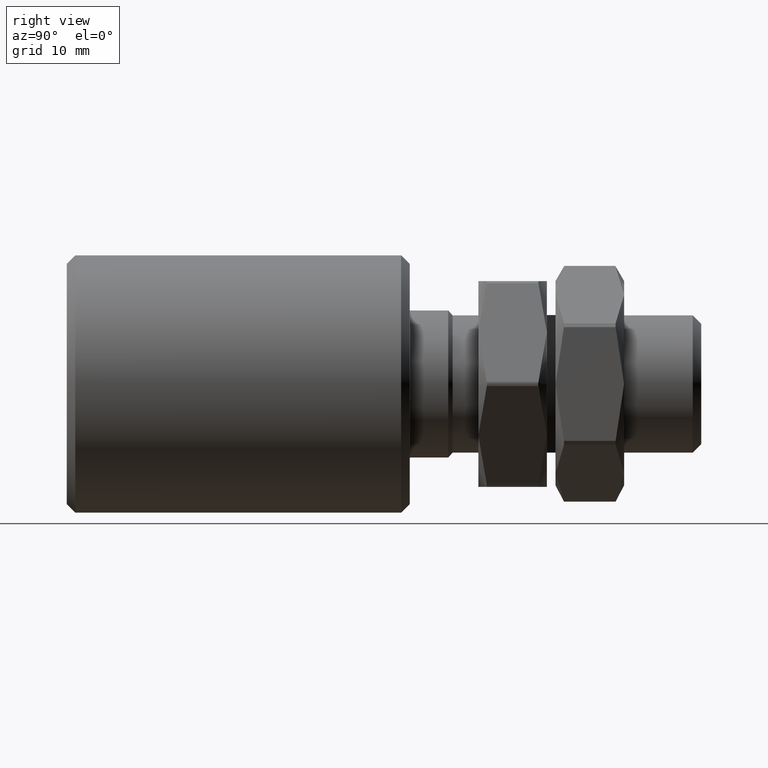
[diagram: clean part render]
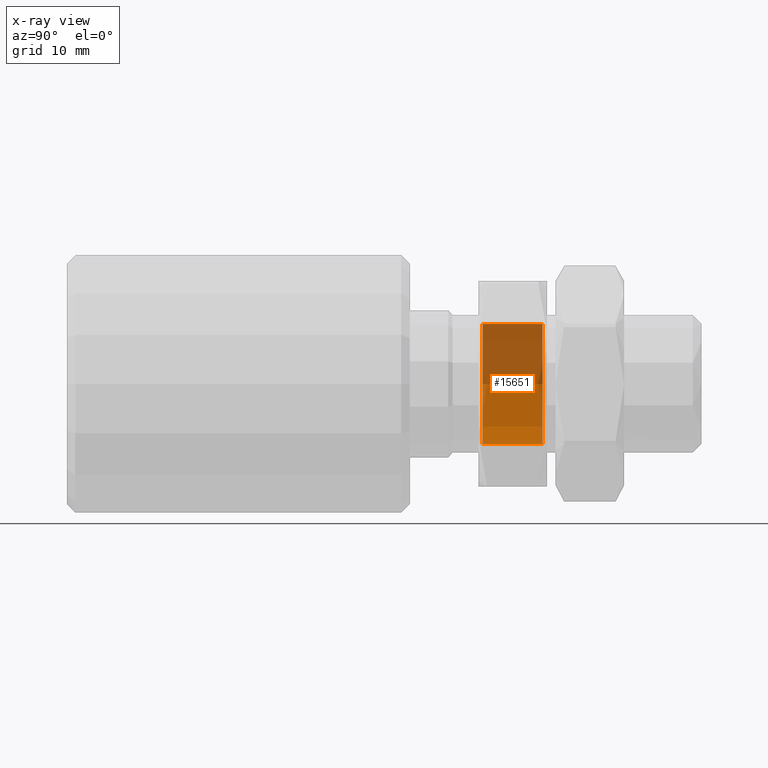
[diagram: x-ray — body ghosted, one internal face saturated and labeled with its STEP entity id]
A machine part, right view, then the same camera in x-ray: the body is ghosted and one INTERNAL B-rep face — a face not visible from any outside direction — is saturated and labeled: STEP entity #15651.
In plain terms, the highlighted cylindrical surface (partial cylindrical patch) has radius 7 mm, axis along (0, 1, 0).
Its self-contained STEP definition (entity closure, byte-faithful):
#90 = DIRECTION ( 'NONE',  ( -0.000000000000000000, 1.000000000000000000, -0.000000000000000000 ) ) ;
#444 = CARTESIAN_POINT ( 'NONE',  ( 8.572527594031473190E-16, -3.499999999999993783, -7.000000000000000000 ) ) ;
#448 = EDGE_CURVE ( 'NONE', #12755, #15610, #14723, .T. ) ;
#863 = VERTEX_POINT ( 'NONE', #444 ) ;
#975 = EDGE_CURVE ( 'NONE', #863, #4374, #6486, .T. ) ;
#1817 = CARTESIAN_POINT ( 'NONE',  ( 8.572527594031473190E-16, 4.000000000000000000, -7.000000000000000000 ) ) ;
#2203 = CARTESIAN_POINT ( 'NONE',  ( 0.000000000000000000, 4.000000000000000000, 0.000000000000000000 ) ) ;
#2587 = DIRECTION ( 'NONE',  ( 0.000000000000000000, 0.000000000000000000, 1.000000000000000000 ) ) ;
#2987 = EDGE_LOOP ( 'NONE', ( #5133, #10405, #4086, #6718 ) ) ;
#3733 = AXIS2_PLACEMENT_3D ( 'NONE', #15028, #11393, #2587 ) ;
#4086 = ORIENTED_EDGE ( 'NONE', *, *, #11968, .T. ) ;
#4374 = VERTEX_POINT ( 'NONE', #6079 ) ;
#4544 = AXIS2_PLACEMENT_3D ( 'NONE', #2203, #9617, #14837 ) ;
#4677 = CIRCLE ( 'NONE', #3733, 7.000000000000000000 ) ;
#5133 = ORIENTED_EDGE ( 'NONE', *, *, #5197, .T. ) ;
#5197 = EDGE_CURVE ( 'NONE', #12755, #863, #4677, .T. ) ;
#5281 = VECTOR ( 'NONE', #90, 1000.000000000000000 ) ;
#6079 = CARTESIAN_POINT ( 'NONE',  ( 8.572527594031473190E-16, 3.500000000000000444, -7.000000000000000000 ) ) ;
#6486 = LINE ( 'NONE', #1817, #7298 ) ;
#6718 = ORIENTED_EDGE ( 'NONE', *, *, #448, .F. ) ;
#7298 = VECTOR ( 'NONE', #10557, 1000.000000000000000 ) ;
#8621 = AXIS2_PLACEMENT_3D ( 'NONE', #16129, #9811, #9918 ) ;
#9617 = DIRECTION ( 'NONE',  ( -0.000000000000000000, 1.000000000000000000, -0.000000000000000000 ) ) ;
#9811 = DIRECTION ( 'NONE',  ( 0.000000000000000000, 1.000000000000000000, 0.000000000000000000 ) ) ;
#9918 = DIRECTION ( 'NONE',  ( 0.000000000000000000, 0.000000000000000000, 1.000000000000000000 ) ) ;
#10405 = ORIENTED_EDGE ( 'NONE', *, *, #975, .T. ) ;
#10557 = DIRECTION ( 'NONE',  ( -0.000000000000000000, 1.000000000000000000, -0.000000000000000000 ) ) ;
#10614 = CARTESIAN_POINT ( 'NONE',  ( 0.000000000000000000, 3.500000000000000444, 7.000000000000000000 ) ) ;
#10995 = CARTESIAN_POINT ( 'NONE',  ( 0.000000000000000000, -3.499999999999993783, 7.000000000000000000 ) ) ;
#11393 = DIRECTION ( 'NONE',  ( -0.000000000000000000, -1.000000000000000000, -0.000000000000000000 ) ) ;
#11813 = CIRCLE ( 'NONE', #8621, 7.000000000000000000 ) ;
#11968 = EDGE_CURVE ( 'NONE', #4374, #15610, #11813, .T. ) ;
#12755 = VERTEX_POINT ( 'NONE', #10995 ) ;
#13459 = CYLINDRICAL_SURFACE ( 'NONE', #4544, 7.000000000000000000 ) ;
#13866 = CARTESIAN_POINT ( 'NONE',  ( 0.000000000000000000, 4.000000000000000000, 7.000000000000000000 ) ) ;
#14723 = LINE ( 'NONE', #13866, #5281 ) ;
#14837 = DIRECTION ( 'NONE',  ( 0.000000000000000000, 0.000000000000000000, 1.000000000000000000 ) ) ;
#15028 = CARTESIAN_POINT ( 'NONE',  ( 0.000000000000000000, -3.499999999999993783, 0.000000000000000000 ) ) ;
#15610 = VERTEX_POINT ( 'NONE', #10614 ) ;
#15651 = ADVANCED_FACE ( 'NONE', ( #16195 ), #13459, .F. ) ;
#16129 = CARTESIAN_POINT ( 'NONE',  ( 0.000000000000000000, 3.500000000000000444, 0.000000000000000000 ) ) ;
#16195 = FACE_OUTER_BOUND ( 'NONE', #2987, .T. ) ;